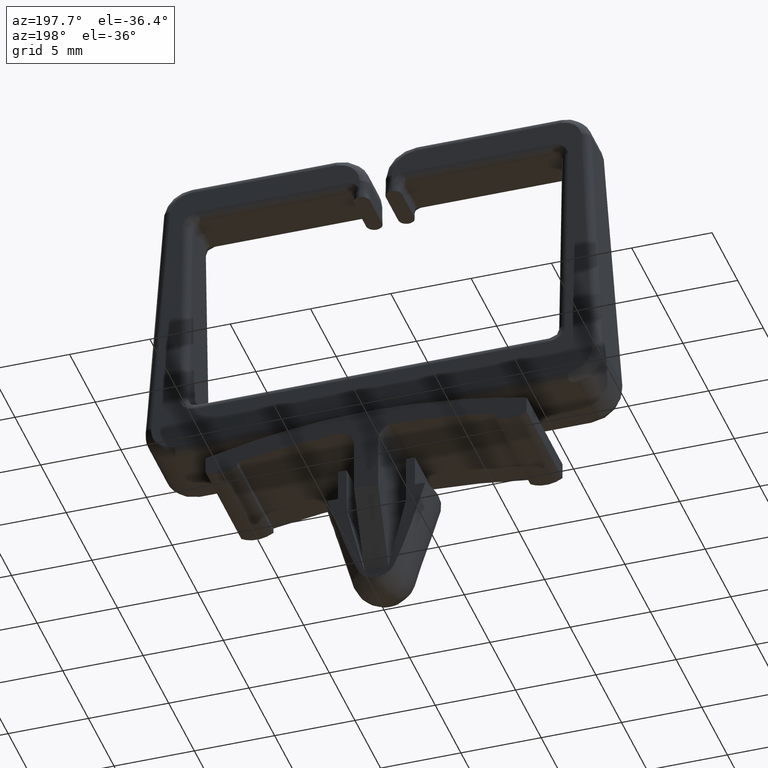
[diagram: clean part render]
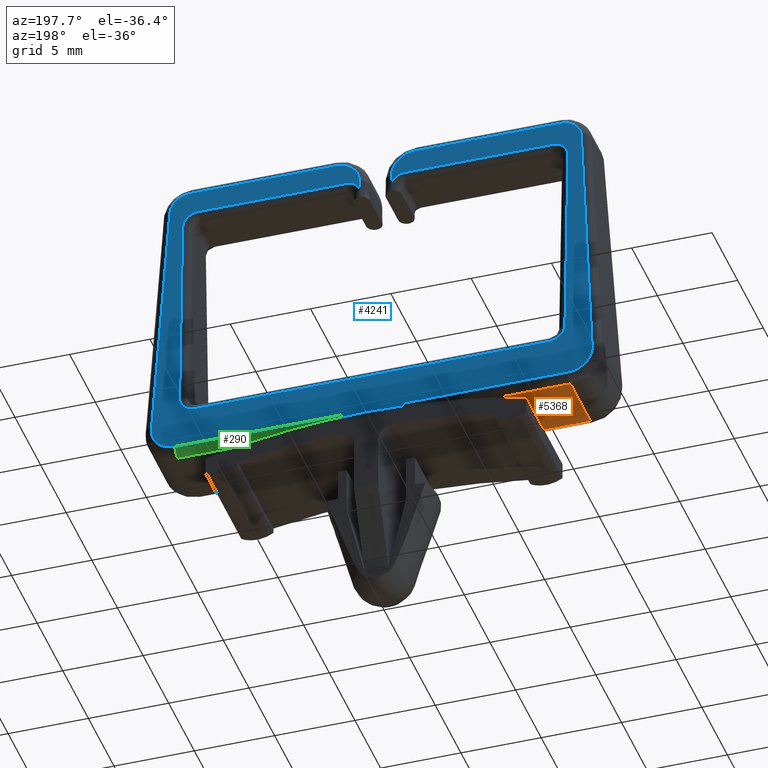
[diagram: same view with three faces highlighted in distinct colors, each labeled with its STEP entity id]
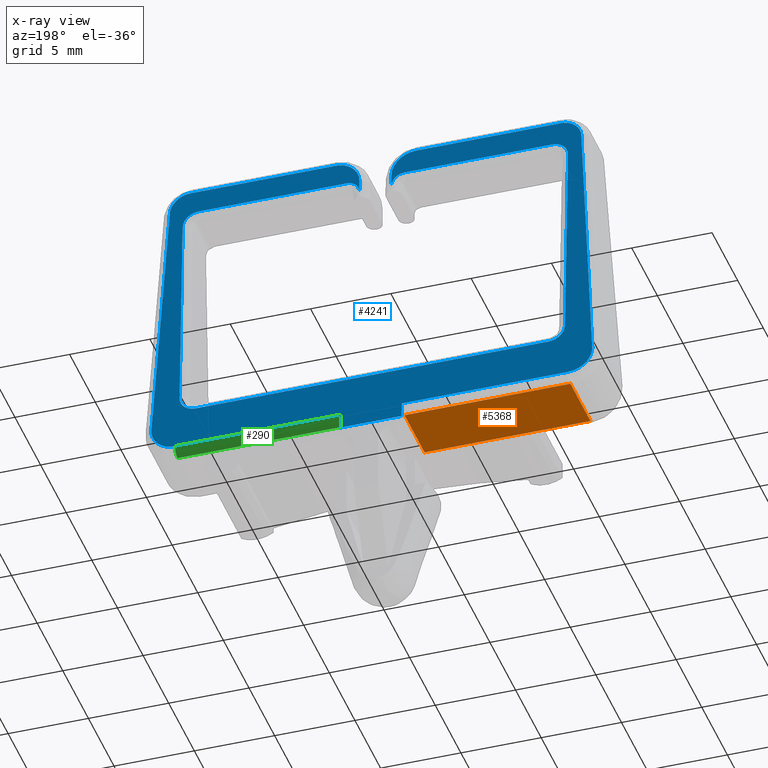
[diagram: x-ray of the same camera — body ghosted, the three highlighted faces saturated]
A machine part, auxiliary view with three faces highlighted in distinct colors.
The next image is the same camera in x-ray (body ghosted, the three faces saturated) — at least one of them is partly hidden behind the body in this view.
Their STEP definitions:

[orange] entity #5368 — the highlighted face is a freeform B-spline surface patch.
#2043=CARTESIAN_POINT('',(-12.229322000000019,1.954683566878445,-3.599999999999895));
#2044=VERTEX_POINT('',#2043);
#2110=CARTESIAN_POINT('',(-1.900000000000000,1.954683566878445,-3.599999999999895));
#2111=VERTEX_POINT('',#2110);
#2129=CARTESIAN_POINT('',(-12.229322000000019,1.954683566878445,-3.599999999999895));
#2130=CARTESIAN_POINT('',(-1.900000000000000,1.954683566878445,-3.599999999999895));
#2131=QUASI_UNIFORM_CURVE('',1,(#2129,#2130),.UNSPECIFIED.,.F.,.U.);
#2132=EDGE_CURVE('',#2044,#2111,#2131,.T.);
#2159=CARTESIAN_POINT('',(-1.900000000000000,-1.954683516752985,-3.599999999999895));
#2160=VERTEX_POINT('',#2159);
#2183=CARTESIAN_POINT('',(-12.229322000000019,-1.954683516752985,-3.599999999999895));
#2184=VERTEX_POINT('',#2183);
#2200=CARTESIAN_POINT('',(-1.900000000000000,-1.954683516752985,-3.599999999999895));
#2201=CARTESIAN_POINT('',(-12.229322000000019,-1.954683516752985,-3.599999999999895));
#2202=QUASI_UNIFORM_CURVE('',1,(#2200,#2201),.UNSPECIFIED.,.F.,.U.);
#2203=EDGE_CURVE('',#2160,#2184,#2202,.T.);
#5344=CARTESIAN_POINT('',(-1.900000000000000,1.954683566878445,-3.599999999999895));
#5345=CARTESIAN_POINT('',(-1.900000000000000,-1.954683516752985,-3.599999999999895));
#5346=QUASI_UNIFORM_CURVE('',1,(#5344,#5345),.UNSPECIFIED.,.F.,.U.);
#5347=EDGE_CURVE('',#2111,#2160,#5346,.T.);
#5353=CARTESIAN_POINT('',(-1.384050289155944,-2.149956431701606,-3.599999999999895));
#5354=CARTESIAN_POINT('',(-12.745271895546750,-2.149956431701606,-3.599999999999895));
#5355=CARTESIAN_POINT('',(-1.384050289155944,2.149956551731996,-3.599999999999895));
#5356=CARTESIAN_POINT('',(-12.745271895546750,2.149956551731996,-3.599999999999895));
#5357=B_SPLINE_SURFACE_WITH_KNOTS('',1,1,((#5353,#5355),(#5354,#5356)),.UNSPECIFIED.,.F.,.F.,.U.,(2,2),(2,2),(0.0,11.361221606390810),(0.0,4.299912983433601),.UNSPECIFIED.);
#5358=CARTESIAN_POINT('',(-12.229322000000019,1.954683566878445,-3.599999999999895));
#5359=CARTESIAN_POINT('',(-12.229322000000019,-1.954683516752985,-3.599999999999895));
#5360=QUASI_UNIFORM_CURVE('',1,(#5358,#5359),.UNSPECIFIED.,.F.,.U.);
#5361=EDGE_CURVE('',#2044,#2184,#5360,.T.);
#5362=ORIENTED_EDGE('',*,*,#5361,.F.);
#5363=ORIENTED_EDGE('',*,*,#2132,.T.);
#5364=ORIENTED_EDGE('',*,*,#5347,.T.);
#5365=ORIENTED_EDGE('',*,*,#2203,.T.);
#5366=EDGE_LOOP('',(#5362,#5363,#5364,#5365));
#5367=FACE_OUTER_BOUND('',#5366,.T.);
#5368=ADVANCED_FACE('',(#5367),#5357,.T.);

[blue] entity #4241 — the highlighted face is a freeform B-spline surface patch.
#149=CARTESIAN_POINT('',(1.899999999999890,2.498031147367530,-4.042725642710265));
#150=VERTEX_POINT('',#149);
#195=CARTESIAN_POINT('',(-1.899999990472680,2.498031156971280,-4.042725854083995));
#196=VERTEX_POINT('',#195);
#210=CARTESIAN_POINT('',(1.899999999999890,2.498031147367530,-4.042725642710265));
#211=CARTESIAN_POINT('',(5.750179E-010,2.494146703667294,-3.957229212745598));
#212=CARTESIAN_POINT('',(-1.899999990472680,2.498031156971280,-4.042725854083995));
#220=(BOUNDED_CURVE()B_SPLINE_CURVE(2,(#210,#211,#212),.UNSPECIFIED.,.F.,.U.)CURVE()GEOMETRIC_REPRESENTATION_ITEM()QUASI_UNIFORM_CURVE()RATIONAL_B_SPLINE_CURVE((1.0,0.998989116641485,1.0))REPRESENTATION_ITEM(''));
#221=EDGE_CURVE('',#150,#196,#220,.T.);
#240=CARTESIAN_POINT('',(12.229321000000001,2.454168302668735,-3.077306416932055));
#241=VERTEX_POINT('',#240);
#266=CARTESIAN_POINT('',(1.899999999999890,2.454168302668735,-3.077306416932055));
#267=VERTEX_POINT('',#266);
#283=CARTESIAN_POINT('',(12.229321000000001,2.454168302668735,-3.077306416932055));
#284=CARTESIAN_POINT('',(1.899999999999890,2.454168302668735,-3.077306416932055));
#285=QUASI_UNIFORM_CURVE('',1,(#283,#284),.UNSPECIFIED.,.F.,.U.);
#286=EDGE_CURVE('',#241,#267,#285,.T.);
#329=CARTESIAN_POINT('',(13.715161772383960,2.376675449035270,-1.371692217224432));
#330=VERTEX_POINT('',#329);
#372=CARTESIAN_POINT('',(13.715161772383970,2.376675449035290,-1.371692217224431));
#373=CARTESIAN_POINT('',(13.808734155991381,2.407397323570713,-2.047879284706826));
#374=CARTESIAN_POINT('',(13.360342941951240,2.430782813350811,-2.562592855905436));
#375=CARTESIAN_POINT('',(12.911951727911104,2.454168303130909,-3.077306427104046));
#376=CARTESIAN_POINT('',(12.229321000000001,2.454168302668735,-3.077306416932055));
#384=(BOUNDED_CURVE()B_SPLINE_CURVE(2,(#372,#373,#374,#375,#376),.UNSPECIFIED.,.F.,.U.)B_SPLINE_CURVE_WITH_KNOTS((3,2,3),(0.0,0.500000000000000,1.0),.UNSPECIFIED.)CURVE()GEOMETRIC_REPRESENTATION_ITEM()RATIONAL_B_SPLINE_CURVE((1.0,0.910180645461816,1.0,0.910180645461816,1.0))REPRESENTATION_ITEM(''));
#385=EDGE_CURVE('',#330,#241,#384,.T.);
#421=CARTESIAN_POINT('',(12.802020763044940,1.637255992311965,14.902896545406101));
#422=VERTEX_POINT('',#421);
#423=CARTESIAN_POINT('',(12.802020763044940,1.637255992311965,14.902896545406101));
#424=CARTESIAN_POINT('',(13.715161772383960,2.376675449035270,-1.371692217224432));
#425=QUASI_UNIFORM_CURVE('',1,(#423,#424),.UNSPECIFIED.,.F.,.U.);
#426=EDGE_CURVE('',#422,#330,#425,.T.);
#501=CARTESIAN_POINT('',(11.514571000000000,1.586379148091520,16.022693583067849));
#502=VERTEX_POINT('',#501);
#532=CARTESIAN_POINT('',(11.514571000000000,1.586379148091520,16.022693583067849));
#533=CARTESIAN_POINT('',(12.645283972844236,1.586379148091578,16.022693583067763));
#534=CARTESIAN_POINT('',(12.802020763044940,1.637255992311965,14.902896545406101));
#542=(BOUNDED_CURVE()B_SPLINE_CURVE(2,(#532,#533,#534),.UNSPECIFIED.,.F.,.U.)CURVE()GEOMETRIC_REPRESENTATION_ITEM()QUASI_UNIFORM_CURVE()RATIONAL_B_SPLINE_CURVE((1.0,0.754525567272968,1.0))REPRESENTATION_ITEM(''));
#543=EDGE_CURVE('',#502,#422,#542,.T.);
#562=CARTESIAN_POINT('',(2.499999999999901,1.586379148091520,16.022693583067849));
#563=VERTEX_POINT('',#562);
#585=CARTESIAN_POINT('',(2.499999999999901,1.586379148091520,16.022693583067849));
#586=CARTESIAN_POINT('',(11.514571000000000,1.586379148091520,16.022693583067849));
#587=QUASI_UNIFORM_CURVE('',1,(#585,#586),.UNSPECIFIED.,.F.,.U.);
#588=EDGE_CURVE('',#563,#502,#587,.T.);
#631=CARTESIAN_POINT('',(0.999999999999890,1.654530128817480,14.522693583067840));
#632=VERTEX_POINT('',#631);
#664=CARTESIAN_POINT('',(0.999999999999900,1.654530128817470,14.522693583067859));
#665=CARTESIAN_POINT('',(0.999999999999900,1.586379148091511,16.022693583067859));
#666=CARTESIAN_POINT('',(2.499999999999900,1.586379148091510,16.022693583067859));
#674=(BOUNDED_CURVE()B_SPLINE_CURVE(2,(#664,#665,#666),.UNSPECIFIED.,.F.,.U.)CURVE()GEOMETRIC_REPRESENTATION_ITEM()QUASI_UNIFORM_CURVE()RATIONAL_B_SPLINE_CURVE((1.0,0.707106781186547,1.0))REPRESENTATION_ITEM(''));
#675=EDGE_CURVE('',#632,#563,#674,.T.);
#730=CARTESIAN_POINT('',(0.999999999999798,1.690877318537995,13.722693583067761));
#731=VERTEX_POINT('',#730);
#732=CARTESIAN_POINT('',(0.999999999999798,1.690877318537995,13.722693583067761));
#733=CARTESIAN_POINT('',(0.999999999999890,1.654530128817480,14.522693583067840));
#734=QUASI_UNIFORM_CURVE('',1,(#732,#733),.UNSPECIFIED.,.F.,.U.);
#735=EDGE_CURVE('',#731,#632,#734,.T.);
#811=CARTESIAN_POINT('',(1.799999999999800,1.654530128817480,14.522693583067840));
#812=VERTEX_POINT('',#811);
#844=CARTESIAN_POINT('',(1.799999999999800,1.654530128817480,14.522693583067840));
#845=CARTESIAN_POINT('',(0.999999999999800,1.654530128817523,14.522693583067754));
#846=CARTESIAN_POINT('',(0.999999999999798,1.690877318537995,13.722693583067761));
#854=(BOUNDED_CURVE()B_SPLINE_CURVE(2,(#844,#845,#846),.UNSPECIFIED.,.F.,.U.)CURVE()GEOMETRIC_REPRESENTATION_ITEM()QUASI_UNIFORM_CURVE()RATIONAL_B_SPLINE_CURVE((1.0,0.707106781186546,1.0))REPRESENTATION_ITEM(''));
#855=EDGE_CURVE('',#812,#731,#854,.T.);
#874=CARTESIAN_POINT('',(11.0,1.654530128817480,14.522693583067840));
#875=VERTEX_POINT('',#874);
#899=CARTESIAN_POINT('',(11.0,1.654530128817480,14.522693583067840));
#900=CARTESIAN_POINT('',(1.799999999999800,1.654530128817480,14.522693583067840));
#901=QUASI_UNIFORM_CURVE('',1,(#899,#900),.UNSPECIFIED.,.F.,.U.);
#902=EDGE_CURVE('',#875,#812,#901,.T.);
#965=CARTESIAN_POINT('',(12.0,1.699964115968120,13.522693583067859));
#966=VERTEX_POINT('',#965);
#998=CARTESIAN_POINT('',(12.0,1.699964115968120,13.522693583067859));
#999=CARTESIAN_POINT('',(12.000000000000002,1.654530128817450,14.522693583067838));
#1000=CARTESIAN_POINT('',(11.0,1.654530128817450,14.522693583067840));
#1008=(BOUNDED_CURVE()B_SPLINE_CURVE(2,(#998,#999,#1000),.UNSPECIFIED.,.F.,.U.)CURVE()GEOMETRIC_REPRESENTATION_ITEM()QUASI_UNIFORM_CURVE()RATIONAL_B_SPLINE_CURVE((1.0,0.707106781186548,1.0))REPRESENTATION_ITEM(''));
#1009=EDGE_CURVE('',#966,#875,#1008,.T.);
#1028=CARTESIAN_POINT('',(12.0,2.290605948926435,0.522693583067840));
#1029=VERTEX_POINT('',#1028);
#1053=CARTESIAN_POINT('',(12.0,2.290605948926435,0.522693583067840));
#1054=CARTESIAN_POINT('',(12.0,1.699964115968120,13.522693583067859));
#1055=QUASI_UNIFORM_CURVE('',1,(#1053,#1054),.UNSPECIFIED.,.F.,.U.);
#1056=EDGE_CURVE('',#1029,#966,#1055,.T.);
#1119=CARTESIAN_POINT('',(11.0,2.336039936077075,-0.477306416932161));
#1120=VERTEX_POINT('',#1119);
#1150=CARTESIAN_POINT('',(11.0,2.336039936077075,-0.477306416932161));
#1151=CARTESIAN_POINT('',(12.0,2.336039936077051,-0.477306416932160));
#1152=CARTESIAN_POINT('',(12.0,2.290605948926410,0.522693583067839));
#1160=(BOUNDED_CURVE()B_SPLINE_CURVE(2,(#1150,#1151,#1152),.UNSPECIFIED.,.F.,.U.)CURVE()GEOMETRIC_REPRESENTATION_ITEM()QUASI_UNIFORM_CURVE()RATIONAL_B_SPLINE_CURVE((1.0,0.707106781186548,1.0))REPRESENTATION_ITEM(''));
#1161=EDGE_CURVE('',#1120,#1029,#1160,.T.);
#1180=CARTESIAN_POINT('',(-11.0,2.336039936077075,-0.477306416932161));
#1181=VERTEX_POINT('',#1180);
#1203=CARTESIAN_POINT('',(-11.0,2.336039936077075,-0.477306416932161));
#1204=CARTESIAN_POINT('',(11.0,2.336039936077075,-0.477306416932161));
#1205=QUASI_UNIFORM_CURVE('',1,(#1203,#1204),.UNSPECIFIED.,.F.,.U.);
#1206=EDGE_CURVE('',#1181,#1120,#1205,.T.);
#1269=CARTESIAN_POINT('',(-12.0,2.290605948926435,0.522693583067844));
#1270=VERTEX_POINT('',#1269);
#1304=CARTESIAN_POINT('',(-12.0,2.290605948926410,0.522693583067843));
#1305=CARTESIAN_POINT('',(-12.0,2.309425322596890,0.108480020694746));
#1306=CARTESIAN_POINT('',(-11.707106781186550,2.322732629336970,-0.184413198118706));
#1307=CARTESIAN_POINT('',(-11.414213562373098,2.336039936077050,-0.477306416932160));
#1308=CARTESIAN_POINT('',(-11.0,2.336039936077050,-0.477306416932160));
#1316=(BOUNDED_CURVE()B_SPLINE_CURVE(2,(#1304,#1305,#1306,#1307,#1308),.UNSPECIFIED.,.F.,.U.)B_SPLINE_CURVE_WITH_KNOTS((3,2,3),(0.0,0.500000000000000,1.0),.UNSPECIFIED.)CURVE()GEOMETRIC_REPRESENTATION_ITEM()RATIONAL_B_SPLINE_CURVE((1.0,0.923879532511298,1.0,0.923879532511298,1.0))REPRESENTATION_ITEM(''));
#1317=EDGE_CURVE('',#1270,#1181,#1316,.T.);
#1336=CARTESIAN_POINT('',(-12.0,1.699964115968120,13.522693583067840));
#1337=VERTEX_POINT('',#1336);
#1361=CARTESIAN_POINT('',(-12.0,1.699964115968120,13.522693583067840));
#1362=CARTESIAN_POINT('',(-12.0,2.290605948926435,0.522693583067844));
#1363=QUASI_UNIFORM_CURVE('',1,(#1361,#1362),.UNSPECIFIED.,.F.,.U.);
#1364=EDGE_CURVE('',#1337,#1270,#1363,.T.);
#1427=CARTESIAN_POINT('',(-11.0,1.654530128817480,14.522693583067840));
#1428=VERTEX_POINT('',#1427);
#1460=CARTESIAN_POINT('',(-11.0,1.654530128817450,14.522693583067840));
#1461=CARTESIAN_POINT('',(-12.000000000000002,1.654530128817450,14.522693583067838));
#1462=CARTESIAN_POINT('',(-12.0,1.699964115968090,13.522693583067840));
#1470=(BOUNDED_CURVE()B_SPLINE_CURVE(2,(#1460,#1461,#1462),.UNSPECIFIED.,.F.,.U.)CURVE()GEOMETRIC_REPRESENTATION_ITEM()QUASI_UNIFORM_CURVE()RATIONAL_B_SPLINE_CURVE((1.0,0.707106781186548,1.0))REPRESENTATION_ITEM(''));
#1471=EDGE_CURVE('',#1428,#1337,#1470,.T.);
#1490=CARTESIAN_POINT('',(-1.800000000000000,1.654530128817480,14.522693583067760));
#1491=VERTEX_POINT('',#1490);
#1515=CARTESIAN_POINT('',(-1.800000000000000,1.654530128817480,14.522693583067760));
#1516=CARTESIAN_POINT('',(-11.0,1.654530128817480,14.522693583067840));
#1517=QUASI_UNIFORM_CURVE('',1,(#1515,#1516),.UNSPECIFIED.,.F.,.U.);
#1518=EDGE_CURVE('',#1491,#1428,#1517,.T.);
#1581=CARTESIAN_POINT('',(-1.0,1.690877318537995,13.722693583067739));
#1582=VERTEX_POINT('',#1581);
#1612=CARTESIAN_POINT('',(-1.0,1.690877318537995,13.722693583067739));
#1613=CARTESIAN_POINT('',(-0.999999995062189,1.675821819984631,14.054064424536865));
#1614=CARTESIAN_POINT('',(-1.234314570836077,1.665175974401077,14.288379003802310));
#1615=CARTESIAN_POINT('',(-1.468629146609965,1.654530128817524,14.522693583067761));
#1616=CARTESIAN_POINT('',(-1.800000000000000,1.654530128817480,14.522693583067760));
#1624=(BOUNDED_CURVE()B_SPLINE_CURVE(2,(#1612,#1613,#1614,#1615,#1616),.UNSPECIFIED.,.F.,.U.)B_SPLINE_CURVE_WITH_KNOTS((3,2,3),(0.0,0.500000000000000,1.0),.UNSPECIFIED.)CURVE()GEOMETRIC_REPRESENTATION_ITEM()RATIONAL_B_SPLINE_CURVE((1.0,0.923879531085677,1.0,0.923879531085677,1.0))REPRESENTATION_ITEM(''));
#1625=EDGE_CURVE('',#1582,#1491,#1624,.T.);
#1680=CARTESIAN_POINT('',(-1.0,1.654530128817480,14.522693583067840));
#1681=VERTEX_POINT('',#1680);
#1682=CARTESIAN_POINT('',(-1.0,1.654530128817480,14.522693583067840));
#1683=CARTESIAN_POINT('',(-1.0,1.690877318537995,13.722693583067739));
#1684=QUASI_UNIFORM_CURVE('',1,(#1682,#1683),.UNSPECIFIED.,.F.,.U.);
#1685=EDGE_CURVE('',#1681,#1582,#1684,.T.);
#1743=CARTESIAN_POINT('',(-2.500000000000000,1.586379148091520,16.022693583067849));
#1744=VERTEX_POINT('',#1743);
#1774=CARTESIAN_POINT('',(-2.500000000000000,1.586379148091510,16.022693583067859));
#1775=CARTESIAN_POINT('',(-1.878679656440351,1.586379148091510,16.022693583067866));
#1776=CARTESIAN_POINT('',(-1.439339828220171,1.606340108201631,15.583353754847680));
#1777=CARTESIAN_POINT('',(-1.0,1.626301068311751,15.144013926627494));
#1778=CARTESIAN_POINT('',(-1.0,1.654530128817471,14.522693583067840));
#1786=(BOUNDED_CURVE()B_SPLINE_CURVE(2,(#1774,#1775,#1776,#1777,#1778),.UNSPECIFIED.,.F.,.U.)B_SPLINE_CURVE_WITH_KNOTS((3,2,3),(0.0,0.500000000000000,1.0),.UNSPECIFIED.)CURVE()GEOMETRIC_REPRESENTATION_ITEM()RATIONAL_B_SPLINE_CURVE((1.0,0.923879532511287,1.0,0.923879532511287,1.0))REPRESENTATION_ITEM(''));
#1787=EDGE_CURVE('',#1744,#1681,#1786,.T.);
#1806=CARTESIAN_POINT('',(-11.514571000000000,1.586379148091525,16.022693583067749));
#1807=VERTEX_POINT('',#1806);
#1829=CARTESIAN_POINT('',(-11.514571000000000,1.586379148091525,16.022693583067749));
#1830=CARTESIAN_POINT('',(-2.500000000000000,1.586379148091520,16.022693583067849));
#1831=QUASI_UNIFORM_CURVE('',1,(#1829,#1830),.UNSPECIFIED.,.F.,.U.);
#1832=EDGE_CURVE('',#1807,#1744,#1831,.T.);
#1875=CARTESIAN_POINT('',(-12.802022432150659,1.637256534122835,14.902884620173401));
#1876=VERTEX_POINT('',#1875);
#1916=CARTESIAN_POINT('',(-12.802022432150659,1.637256534122835,14.902884620173401));
#1917=CARTESIAN_POINT('',(-12.645294548406673,1.586379148091579,16.022693583067760));
#1918=CARTESIAN_POINT('',(-11.514571000000000,1.586379148091525,16.022693583067749));
#1926=(BOUNDED_CURVE()B_SPLINE_CURVE(2,(#1916,#1917,#1918),.UNSPECIFIED.,.F.,.U.)CURVE()GEOMETRIC_REPRESENTATION_ITEM()QUASI_UNIFORM_CURVE()RATIONAL_B_SPLINE_CURVE((1.0,0.754522527854959,1.0))REPRESENTATION_ITEM(''));
#1927=EDGE_CURVE('',#1876,#1807,#1926,.T.);
#1963=CARTESIAN_POINT('',(-13.715162772383760,2.376675449035190,-1.371692217222722));
#1964=VERTEX_POINT('',#1963);
#1965=CARTESIAN_POINT('',(-13.715162772383760,2.376675449035190,-1.371692217222722));
#1966=CARTESIAN_POINT('',(-12.802022432150659,1.637256534122835,14.902884620173401));
#1967=QUASI_UNIFORM_CURVE('',1,(#1965,#1966),.UNSPECIFIED.,.F.,.U.);
#1968=EDGE_CURVE('',#1964,#1876,#1967,.T.);
#2061=CARTESIAN_POINT('',(-12.229322000000019,2.454168302668735,-3.077306416932055));
#2062=VERTEX_POINT('',#2061);
#2063=CARTESIAN_POINT('',(-12.229322000000019,2.454168302668735,-3.077306416932055));
#2064=CARTESIAN_POINT('',(-12.911952759124684,2.454168302206600,-3.077306406760064));
#2065=CARTESIAN_POINT('',(-13.360343956633740,2.430782812585058,-2.562592839051245));
#2066=CARTESIAN_POINT('',(-13.808735154142791,2.407397322963516,-2.047879271342425));
#2067=CARTESIAN_POINT('',(-13.715162772383760,2.376675449035212,-1.371692217222721));
#2075=(BOUNDED_CURVE()B_SPLINE_CURVE(2,(#2063,#2064,#2065,#2066,#2067),.UNSPECIFIED.,.F.,.U.)B_SPLINE_CURVE_WITH_KNOTS((3,2,3),(0.0,0.500000000000000,1.0),.UNSPECIFIED.)CURVE()GEOMETRIC_REPRESENTATION_ITEM()RATIONAL_B_SPLINE_CURVE((1.0,0.910180648547811,1.0,0.910180648547811,1.0))REPRESENTATION_ITEM(''));
#2076=EDGE_CURVE('',#2062,#1964,#2075,.T.);
#2112=CARTESIAN_POINT('',(-1.900000000000000,2.454168302668601,-3.077306416932055));
#2113=VERTEX_POINT('',#2112);
#2135=CARTESIAN_POINT('',(-1.900000000000000,2.454168302668601,-3.077306416932055));
#2136=CARTESIAN_POINT('',(-12.229322000000019,2.454168302668735,-3.077306416932055));
#2137=QUASI_UNIFORM_CURVE('',1,(#2135,#2136),.UNSPECIFIED.,.F.,.U.);
#2138=EDGE_CURVE('',#2113,#2062,#2137,.T.);
#4198=CARTESIAN_POINT('',(-15.100419155347049,1.540842123456996,17.024961433422710));
#4199=CARTESIAN_POINT('',(-15.100419155347049,2.543568197907404,-5.044994063236514));
#4200=CARTESIAN_POINT('',(15.100418900010670,1.540842123456996,17.024961433422710));
#4201=CARTESIAN_POINT('',(15.100418900010670,2.543568197907404,-5.044994063236514));
#4202=B_SPLINE_SURFACE_WITH_KNOTS('',1,1,((#4198,#4200),(#4199,#4201)),.UNSPECIFIED.,.F.,.F.,.U.,(2,2),(2,2),(0.0,22.092722675236331),(0.0,30.200838055357728),.UNSPECIFIED.);
#4203=CARTESIAN_POINT('',(1.899999999999890,2.454168302668735,-3.077306416932055));
#4204=CARTESIAN_POINT('',(1.899999999999890,2.498031147367530,-4.042725642710265));
#4205=QUASI_UNIFORM_CURVE('',1,(#4203,#4204),.UNSPECIFIED.,.F.,.U.);
#4206=EDGE_CURVE('',#267,#150,#4205,.T.);
#4207=ORIENTED_EDGE('',*,*,#4206,.T.);
#4208=ORIENTED_EDGE('',*,*,#221,.T.);
#4209=CARTESIAN_POINT('',(-1.899999990472680,2.498031156971280,-4.042725854083995));
#4210=CARTESIAN_POINT('',(-1.900000000000000,2.454168302668601,-3.077306416932055));
#4211=QUASI_UNIFORM_CURVE('',1,(#4209,#4210),.UNSPECIFIED.,.F.,.U.);
#4212=EDGE_CURVE('',#196,#2113,#4211,.T.);
#4213=ORIENTED_EDGE('',*,*,#4212,.T.);
#4214=ORIENTED_EDGE('',*,*,#2138,.T.);
#4215=ORIENTED_EDGE('',*,*,#2076,.T.);
#4216=ORIENTED_EDGE('',*,*,#1968,.T.);
#4217=ORIENTED_EDGE('',*,*,#1927,.T.);
#4218=ORIENTED_EDGE('',*,*,#1832,.T.);
#4219=ORIENTED_EDGE('',*,*,#1787,.T.);
#4220=ORIENTED_EDGE('',*,*,#1685,.T.);
#4221=ORIENTED_EDGE('',*,*,#1625,.T.);
#4222=ORIENTED_EDGE('',*,*,#1518,.T.);
#4223=ORIENTED_EDGE('',*,*,#1471,.T.);
#4224=ORIENTED_EDGE('',*,*,#1364,.T.);
#4225=ORIENTED_EDGE('',*,*,#1317,.T.);
#4226=ORIENTED_EDGE('',*,*,#1206,.T.);
#4227=ORIENTED_EDGE('',*,*,#1161,.T.);
#4228=ORIENTED_EDGE('',*,*,#1056,.T.);
#4229=ORIENTED_EDGE('',*,*,#1009,.T.);
#4230=ORIENTED_EDGE('',*,*,#902,.T.);
#4231=ORIENTED_EDGE('',*,*,#855,.T.);
#4232=ORIENTED_EDGE('',*,*,#735,.T.);
#4233=ORIENTED_EDGE('',*,*,#675,.T.);
#4234=ORIENTED_EDGE('',*,*,#588,.T.);
#4235=ORIENTED_EDGE('',*,*,#543,.T.);
#4236=ORIENTED_EDGE('',*,*,#426,.T.);
#4237=ORIENTED_EDGE('',*,*,#385,.T.);
#4238=ORIENTED_EDGE('',*,*,#286,.T.);
#4239=EDGE_LOOP('',(#4207,#4208,#4213,#4214,#4215,#4216,#4217,#4218,#4219,#4220,#4221,#4222,#4223,#4224,#4225,#4226,#4227,#4228,#4229,#4230,#4231,#4232,#4233,#4234,#4235,#4236,#4237,#4238));
#4240=FACE_OUTER_BOUND('',#4239,.T.);
#4241=ADVANCED_FACE('',(#4240),#4202,.F.);

[green] entity #290 — the highlighted face is a freeform B-spline surface patch.
#226=CARTESIAN_POINT('',(1.641766974999887,2.453951247462273,-3.072948509756392));
#227=CARTESIAN_POINT('',(12.494009850625000,2.453951247462273,-3.072948509756392));
#228=CARTESIAN_POINT('',(1.641766974999887,2.483994971071489,-3.627441444062590));
#229=CARTESIAN_POINT('',(12.494009850625005,2.483994971071489,-3.627441444062590));
#230=CARTESIAN_POINT('',(1.641766974999887,1.929399182817262,-3.599360290694548));
#231=CARTESIAN_POINT('',(12.494009850625000,1.929399182817262,-3.599360290694548));
#239=(BOUNDED_SURFACE()B_SPLINE_SURFACE(1,2,((#226,#228,#230),(#227,#229,#231)),.UNSPECIFIED.,.F.,.F.,.U.)B_SPLINE_SURFACE_WITH_KNOTS((2,2),(3,3),(0.0,10.852242875625119),(0.0,1.0),.UNSPECIFIED.)GEOMETRIC_REPRESENTATION_ITEM()RATIONAL_B_SPLINE_SURFACE(((1.0,0.669130606358858,1.0),(1.0,0.669130606358858,1.0)))REPRESENTATION_ITEM('')SURFACE());
#240=CARTESIAN_POINT('',(12.229321000000001,2.454168302668735,-3.077306416932055));
#241=VERTEX_POINT('',#240);
#242=CARTESIAN_POINT('',(12.229321000000001,1.954683566878445,-3.599999999999895));
#243=VERTEX_POINT('',#242);
#244=CARTESIAN_POINT('',(12.229321000000001,2.454168302668732,-3.077306416932055));
#245=CARTESIAN_POINT('',(12.229320999999995,2.463871514139799,-3.290873662062749));
#246=CARTESIAN_POINT('',(12.229321000000001,2.316171320152241,-3.445436831031312));
#247=CARTESIAN_POINT('',(12.229320999999995,2.168471126164662,-3.599999999999895));
#248=CARTESIAN_POINT('',(12.229321000000001,1.954683566878445,-3.599999999999895));
#256=(BOUNDED_CURVE()B_SPLINE_CURVE(2,(#244,#245,#246,#247,#248),.UNSPECIFIED.,.F.,.U.)B_SPLINE_CURVE_WITH_KNOTS((3,2,3),(0.0,0.500000000000000,1.0),.UNSPECIFIED.)CURVE()GEOMETRIC_REPRESENTATION_ITEM()RATIONAL_B_SPLINE_CURVE((1.0,0.919476389599784,1.0,0.919476389599784,1.0))REPRESENTATION_ITEM(''));
#257=EDGE_CURVE('',#241,#243,#256,.T.);
#258=ORIENTED_EDGE('',*,*,#257,.T.);
#259=CARTESIAN_POINT('',(1.899999999999890,1.954683566878445,-3.599999999999895));
#260=VERTEX_POINT('',#259);
#261=CARTESIAN_POINT('',(1.899999999999890,1.954683566878445,-3.599999999999895));
#262=CARTESIAN_POINT('',(12.229321000000001,1.954683566878445,-3.599999999999895));
#263=QUASI_UNIFORM_CURVE('',1,(#261,#262),.UNSPECIFIED.,.F.,.U.);
#264=EDGE_CURVE('',#260,#243,#263,.T.);
#265=ORIENTED_EDGE('',*,*,#264,.F.);
#266=CARTESIAN_POINT('',(1.899999999999890,2.454168302668735,-3.077306416932055));
#267=VERTEX_POINT('',#266);
#268=CARTESIAN_POINT('',(1.899999999999900,2.454168302668732,-3.077306416932055));
#269=CARTESIAN_POINT('',(1.899999999999900,2.463871514139799,-3.290873662062764));
#270=CARTESIAN_POINT('',(1.899999999999900,2.316171320152223,-3.445436831031330));
#271=CARTESIAN_POINT('',(1.899999999999900,2.168471126164647,-3.599999999999895));
#272=CARTESIAN_POINT('',(1.899999999999890,1.954683566878445,-3.599999999999895));
#280=(BOUNDED_CURVE()B_SPLINE_CURVE(2,(#268,#269,#270,#271,#272),.UNSPECIFIED.,.F.,.U.)B_SPLINE_CURVE_WITH_KNOTS((3,2,3),(0.0,0.500000000000000,1.0),.UNSPECIFIED.)CURVE()GEOMETRIC_REPRESENTATION_ITEM()RATIONAL_B_SPLINE_CURVE((1.0,0.919476389599774,1.0,0.919476389599774,1.0))REPRESENTATION_ITEM(''));
#281=EDGE_CURVE('',#267,#260,#280,.T.);
#282=ORIENTED_EDGE('',*,*,#281,.F.);
#283=CARTESIAN_POINT('',(12.229321000000001,2.454168302668735,-3.077306416932055));
#284=CARTESIAN_POINT('',(1.899999999999890,2.454168302668735,-3.077306416932055));
#285=QUASI_UNIFORM_CURVE('',1,(#283,#284),.UNSPECIFIED.,.F.,.U.);
#286=EDGE_CURVE('',#241,#267,#285,.T.);
#287=ORIENTED_EDGE('',*,*,#286,.F.);
#288=EDGE_LOOP('',(#258,#265,#282,#287));
#289=FACE_OUTER_BOUND('',#288,.T.);
#290=ADVANCED_FACE('',(#289),#239,.T.);